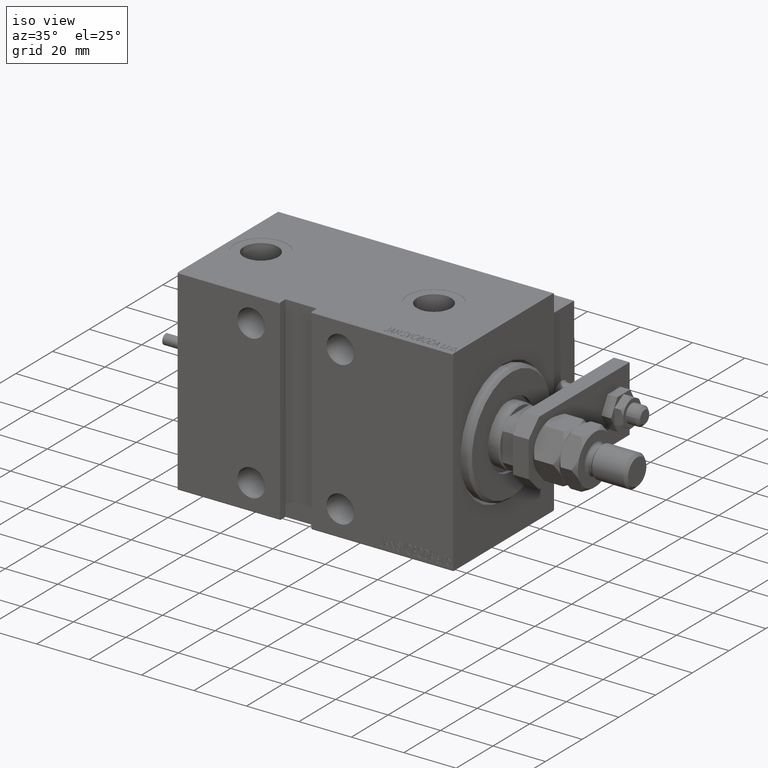
[diagram: clean part render]
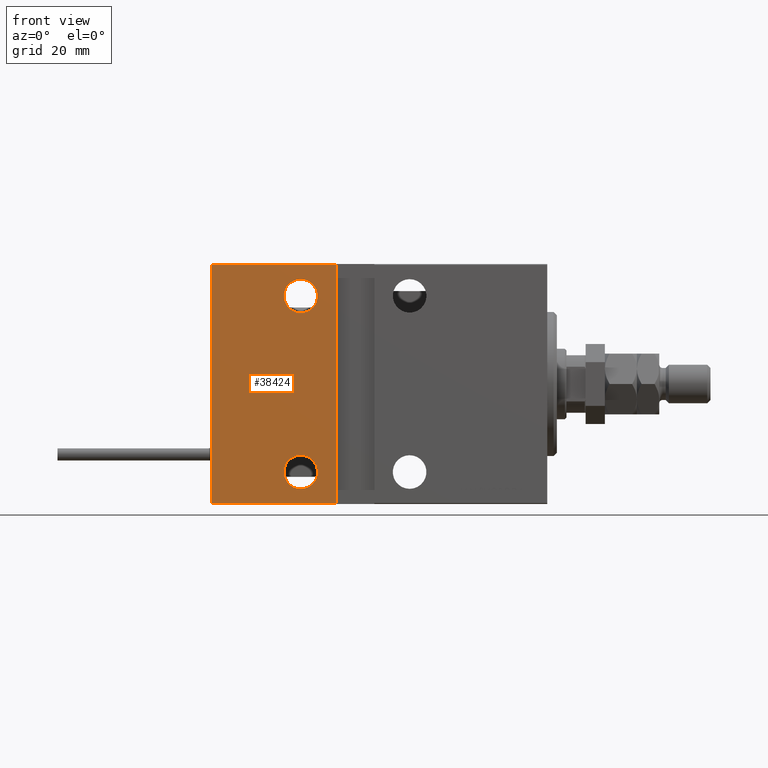
[diagram: tour spotlight — one face highlighted and labeled with its STEP entity id]
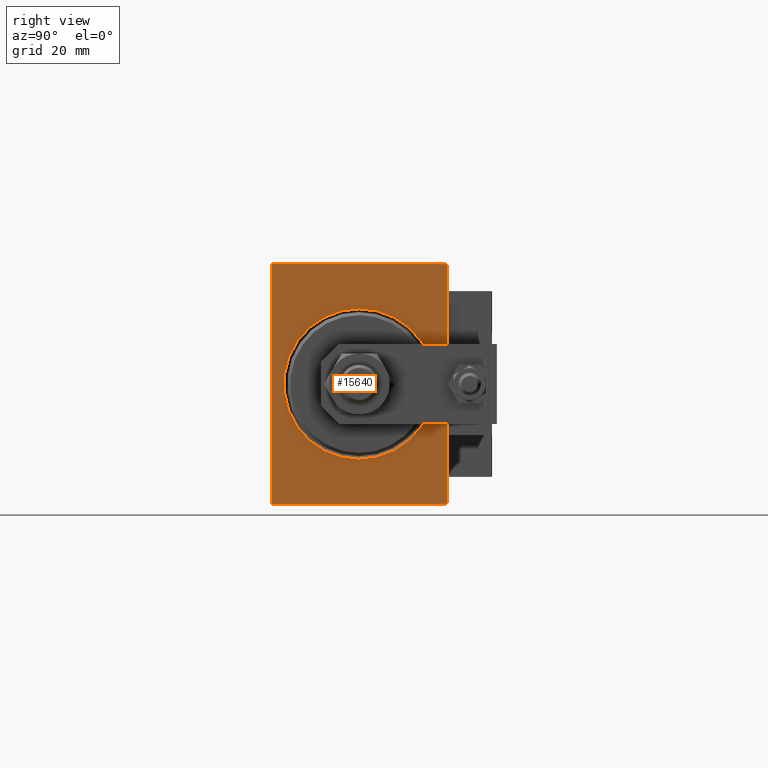
[diagram: tour spotlight — one face highlighted and labeled with its STEP entity id]
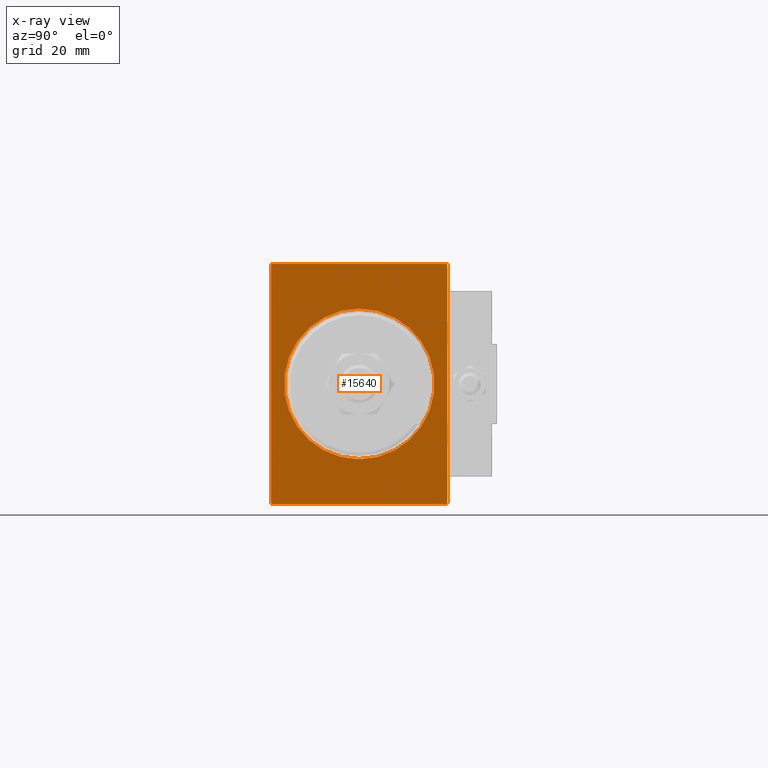
[diagram: x-ray of the same camera — body ghosted, this tour face saturated]
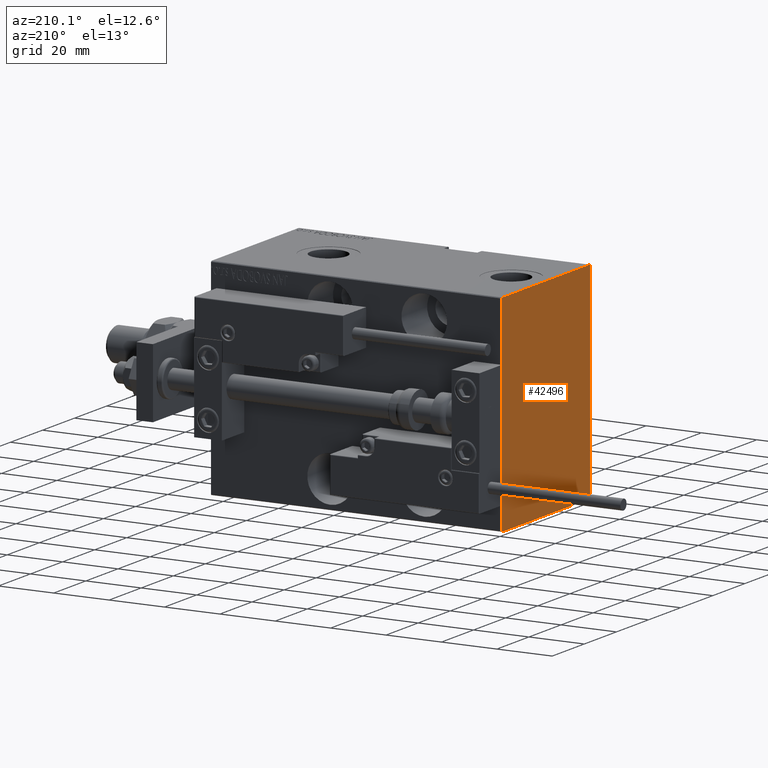
[diagram: tour spotlight — one face highlighted and labeled with its STEP entity id]
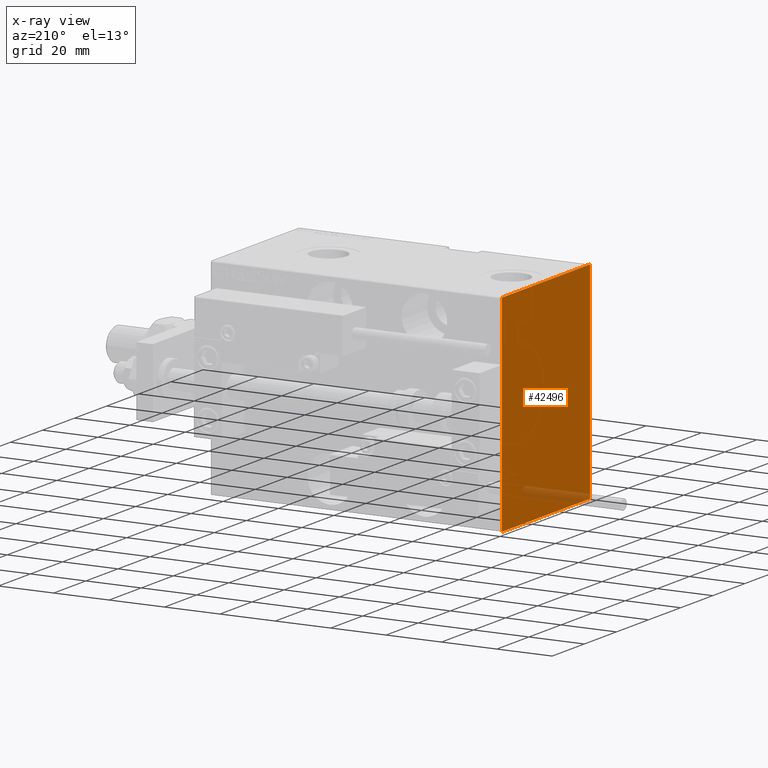
[diagram: x-ray of the same camera — body ghosted, this tour face saturated]
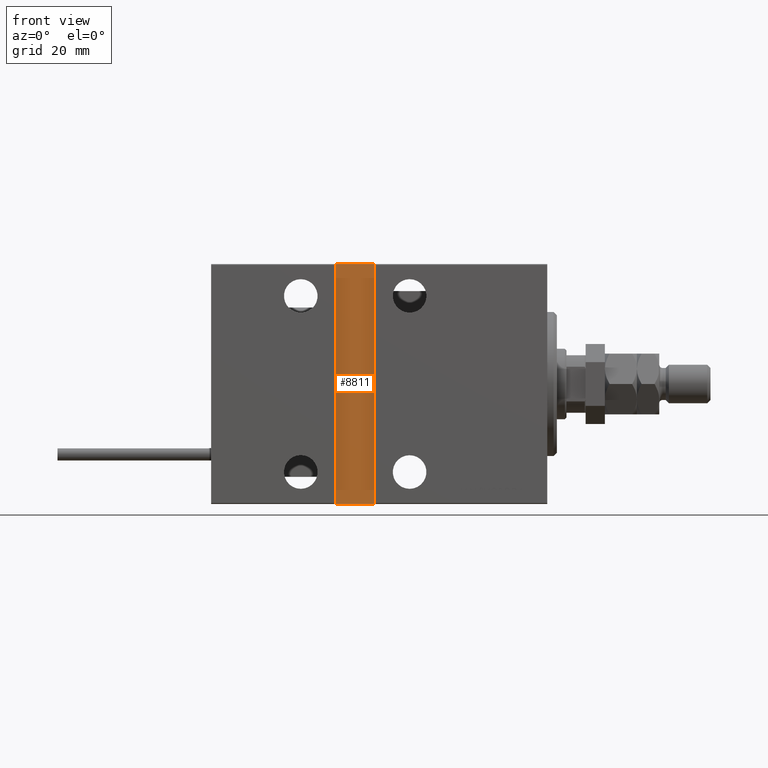
[diagram: tour spotlight — one face highlighted and labeled with its STEP entity id]
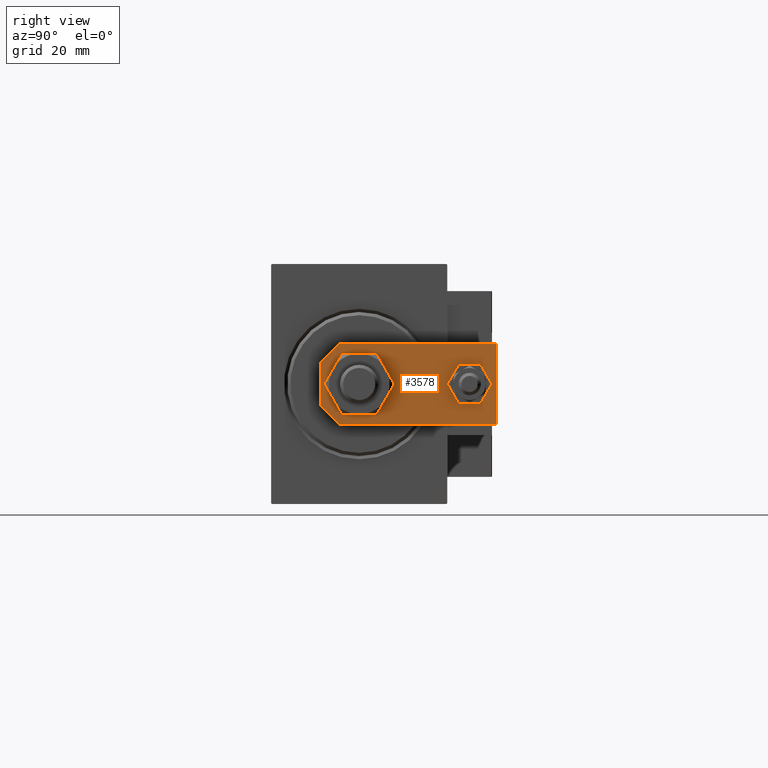
[diagram: tour spotlight — one face highlighted and labeled with its STEP entity id]
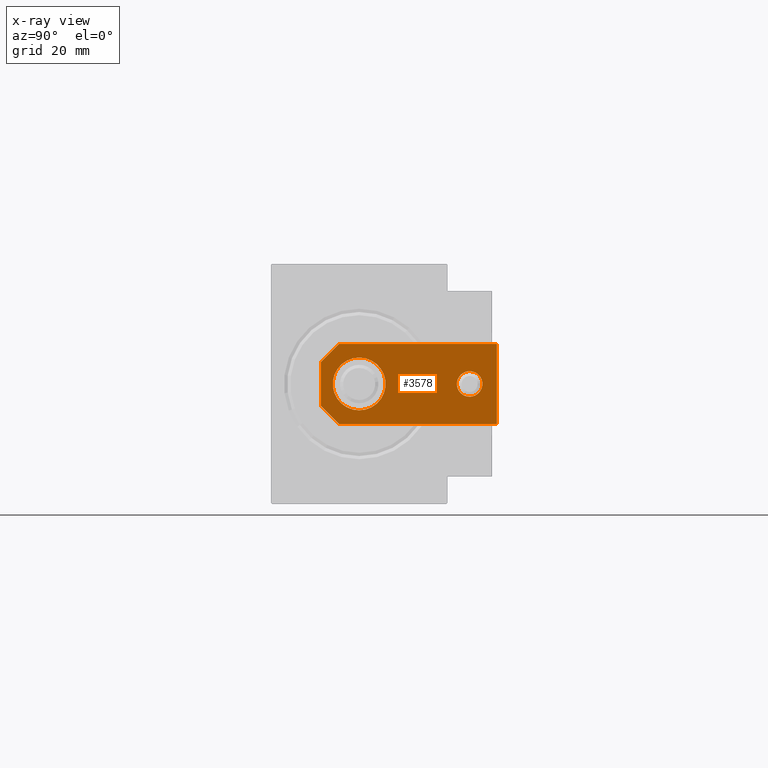
[diagram: x-ray of the same camera — body ghosted, this tour face saturated]
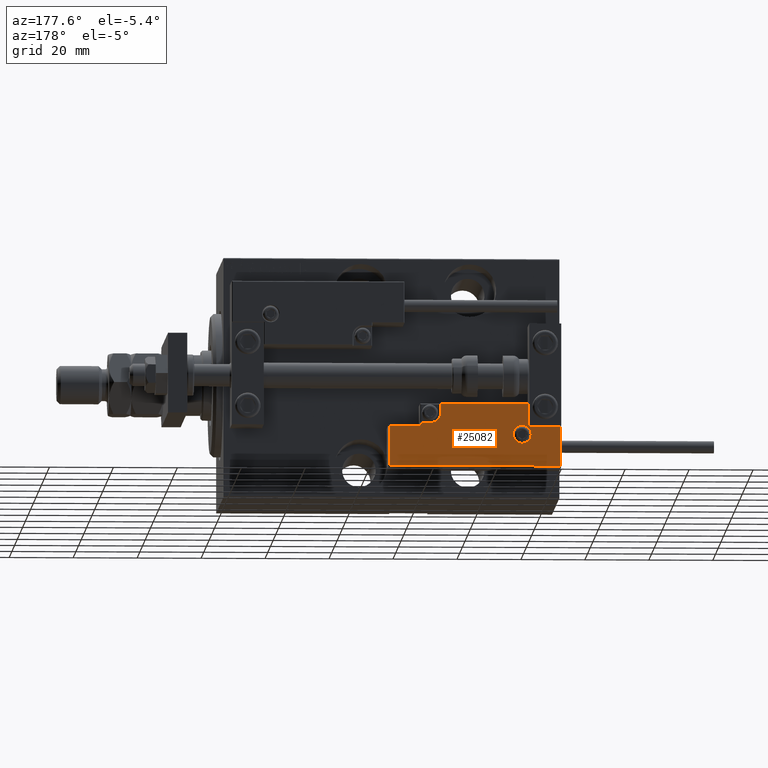
[diagram: tour spotlight — one face highlighted and labeled with its STEP entity id]
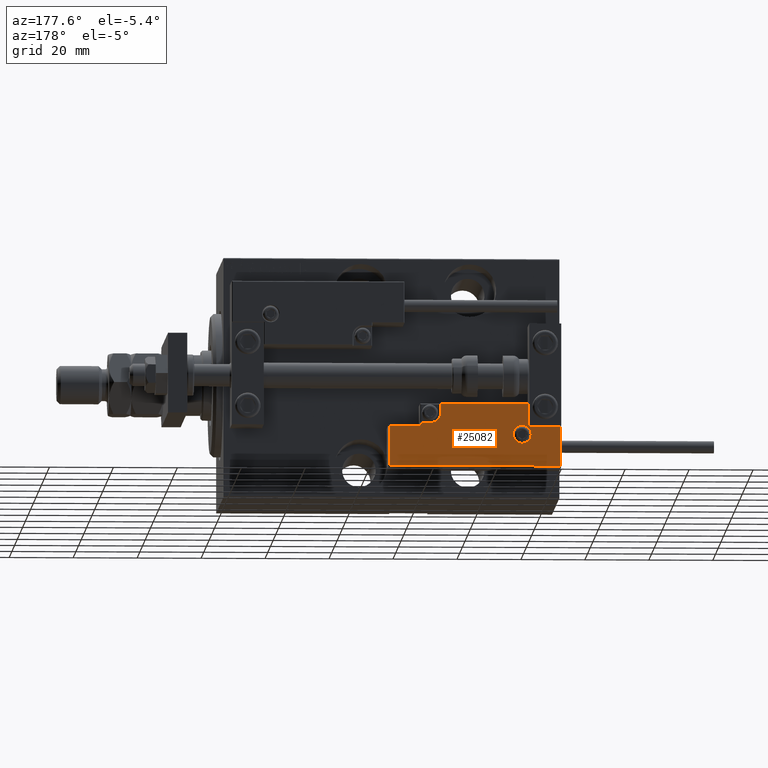
[diagram: tour spotlight — one face highlighted and labeled with its STEP entity id]
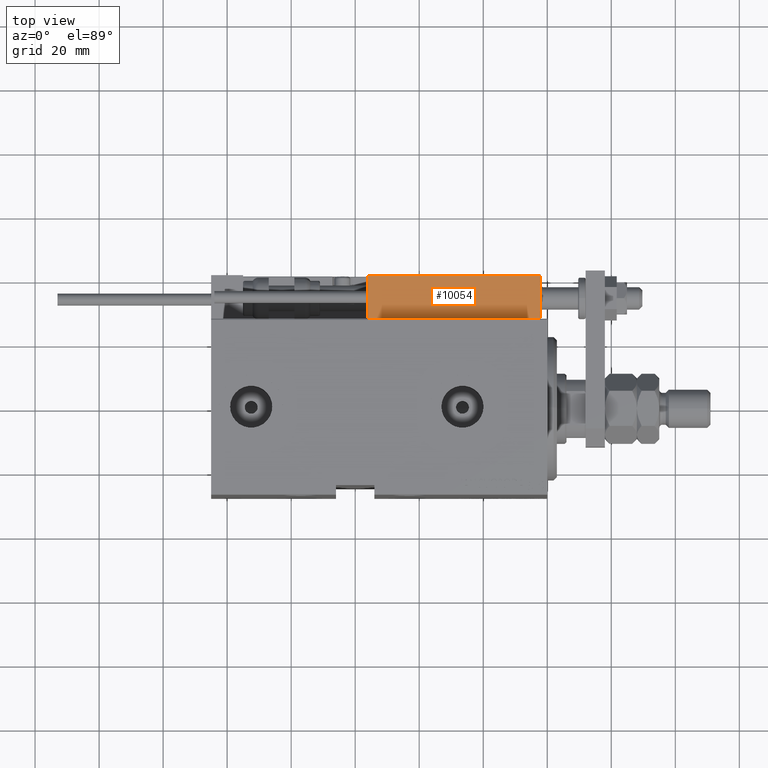
[diagram: tour spotlight — one face highlighted and labeled with its STEP entity id]
A machine part: a face-by-face anatomy tour. The part has 1339 B-rep faces; the first image is the clean iso view, then the 8 largest visible faces are spotlighted one at a time (largest first), each with its STEP entity span.

Face 1 — front view, entity #38424. In plain terms, the highlighted planar face has unit normal (-0, 1, -0).
Definition (entity closure, byte-faithful):
#114 = ORIENTED_EDGE ( 'NONE', *, *, #33046, .T. ) ;
#226 = DIRECTION ( 'NONE',  ( 0.000000000000000000, -1.000000000000000000, -9.251858538542970348E-17 ) ) ;
#1800 = DIRECTION ( 'NONE',  ( 0.000000000000000000, -1.000000000000000000, -9.251858538542970348E-17 ) ) ;
#3501 = EDGE_CURVE ( 'NONE', #46280, #40195, #50931, .T. ) ;
#3828 = CIRCLE ( 'NONE', #47236, 5.250000000000004441 ) ;
#4428 = DIRECTION ( 'NONE',  ( -0.000000000000000000, 9.251858538542970348E-17, -1.000000000000000000 ) ) ;
#5444 = VERTEX_POINT ( 'NONE', #12731 ) ;
#5595 = EDGE_CURVE ( 'NONE', #20827, #33365, #18261, .T. ) ;
#5861 = PLANE ( 'NONE',  #26286 ) ;
#7049 = VECTOR ( 'NONE', #35425, 1000.000000000000000 ) ;
#7728 = LINE ( 'NONE', #27320, #7049 ) ;
#9780 = CARTESIAN_POINT ( 'NONE',  ( 105.0000000000000000, 27.50000000000000355, -37.50000000000000711 ) ) ;
#10036 = VERTEX_POINT ( 'NONE', #18808 ) ;
#11020 = ORIENTED_EDGE ( 'NONE', *, *, #40705, .T. ) ;
#11197 = CIRCLE ( 'NONE', #17868, 5.250000000000000888 ) ;
#11647 = DIRECTION ( 'NONE',  ( 0.000000000000000000, -1.000000000000000000, -9.251858538542970348E-17 ) ) ;
#11732 = CARTESIAN_POINT ( 'NONE',  ( 77.00000000000001421, 27.49999999999999645, 27.50000000000002132 ) ) ;
#12009 = CARTESIAN_POINT ( 'NONE',  ( 66.00000000000000000, 27.50000000000000355, -37.50000000000001421 ) ) ;
#12731 = CARTESIAN_POINT ( 'NONE',  ( 105.0000000000000000, 27.50000000000000355, -37.20000000000002416 ) ) ;
#13321 = ORIENTED_EDGE ( 'NONE', *, *, #3501, .T. ) ;
#15296 = CARTESIAN_POINT ( 'NONE',  ( 77.00000000000001421, 27.50000000000000355, -27.49999999999998579 ) ) ;
#15635 = VECTOR ( 'NONE', #26086, 1000.000000000000000 ) ;
#15661 = VERTEX_POINT ( 'NONE', #18826 ) ;
#15818 = EDGE_LOOP ( 'NONE', ( #43598, #27121, #43278, #13321 ) ) ;
#16771 = EDGE_CURVE ( 'NONE', #5444, #15661, #26859, .T. ) ;
#17372 = FACE_BOUND ( 'NONE', #20435, .T. ) ;
#17868 = AXIS2_PLACEMENT_3D ( 'NONE', #42054, #1800, #50414 ) ;
#18261 = CIRCLE ( 'NONE', #44171, 5.250000000000000888 ) ;
#18808 = CARTESIAN_POINT ( 'NONE',  ( 77.00000000000001421, 27.49999999999999645, 32.75000000000002132 ) ) ;
#18826 = CARTESIAN_POINT ( 'NONE',  ( 66.00000000000000000, 27.50000000000000355, -37.20000000000002416 ) ) ;
#19196 = EDGE_CURVE ( 'NONE', #40909, #10036, #45812, .T. ) ;
#19738 = CARTESIAN_POINT ( 'NONE',  ( 77.00000000000001421, 27.49999999999999645, 22.25000000000001776 ) ) ;
#20435 = EDGE_LOOP ( 'NONE', ( #49066, #114 ) ) ;
#20827 = VERTEX_POINT ( 'NONE', #31968 ) ;
#21803 = DIRECTION ( 'NONE',  ( 0.000000000000000000, 9.251858538542970348E-17, -1.000000000000000000 ) ) ;
#22361 = VECTOR ( 'NONE', #47247, 1000.000000000000000 ) ;
#22380 = DIRECTION ( 'NONE',  ( 0.000000000000000000, -1.000000000000000000, -9.251858538542970348E-17 ) ) ;
#23171 = CARTESIAN_POINT ( 'NONE',  ( 66.00000000000000000, 27.49999999999999645, 37.20000000000005969 ) ) ;
#25972 = DIRECTION ( 'NONE',  ( 0.000000000000000000, -1.000000000000000000, -9.251858538542970348E-17 ) ) ;
#26086 = DIRECTION ( 'NONE',  ( -1.000000000000000000, 0.000000000000000000, 0.000000000000000000 ) ) ;
#26286 = AXIS2_PLACEMENT_3D ( 'NONE', #9780, #25972, #21803 ) ;
#26859 = LINE ( 'NONE', #31029, #15635 ) ;
#27121 = ORIENTED_EDGE ( 'NONE', *, *, #16771, .T. ) ;
#27320 = CARTESIAN_POINT ( 'NONE',  ( 105.0000000000000000, 27.50000000000000355, -37.50000000000000711 ) ) ;
#31029 = CARTESIAN_POINT ( 'NONE',  ( 105.0000000000000000, 27.50000000000000355, -37.20000000000002416 ) ) ;
#31968 = CARTESIAN_POINT ( 'NONE',  ( 77.00000000000001421, 27.50000000000000355, -22.24999999999998224 ) ) ;
#33037 = FACE_OUTER_BOUND ( 'NONE', #15818, .T. ) ;
#33046 = EDGE_CURVE ( 'NONE', #33365, #20827, #11197, .T. ) ;
#33365 = VERTEX_POINT ( 'NONE', #40649 ) ;
#34263 = EDGE_CURVE ( 'NONE', #5444, #40195, #7728, .T. ) ;
#34948 = AXIS2_PLACEMENT_3D ( 'NONE', #11732, #226, #43886 ) ;
#35170 = DIRECTION ( 'NONE',  ( 0.000000000000000000, 0.000000000000000000, -1.000000000000000000 ) ) ;
#35425 = DIRECTION ( 'NONE',  ( 0.000000000000000000, -9.251858538542970348E-17, 1.000000000000000000 ) ) ;
#36828 = LINE ( 'NONE', #12009, #39300 ) ;
#37203 = CARTESIAN_POINT ( 'NONE',  ( 105.0000000000000000, 27.49999999999999645, 37.20000000000005258 ) ) ;
#38424 = ADVANCED_FACE ( 'NONE', ( #17372, #41691, #33037 ), #5861, .F. ) ;
#39300 = VECTOR ( 'NONE', #4428, 1000.000000000000000 ) ;
#40195 = VERTEX_POINT ( 'NONE', #37203 ) ;
#40649 = CARTESIAN_POINT ( 'NONE',  ( 77.00000000000001421, 27.50000000000000355, -32.74999999999998579 ) ) ;
#40705 = EDGE_CURVE ( 'NONE', #10036, #40909, #3828, .T. ) ;
#40909 = VERTEX_POINT ( 'NONE', #19738 ) ;
#41691 = FACE_BOUND ( 'NONE', #45667, .T. ) ;
#42054 = CARTESIAN_POINT ( 'NONE',  ( 77.00000000000001421, 27.50000000000000355, -27.49999999999998579 ) ) ;
#42263 = CARTESIAN_POINT ( 'NONE',  ( 77.00000000000001421, 27.49999999999999645, 27.50000000000002132 ) ) ;
#42577 = CARTESIAN_POINT ( 'NONE',  ( 105.0000000000000000, 27.49999999999999645, 37.20000000000005258 ) ) ;
#43278 = ORIENTED_EDGE ( 'NONE', *, *, #51484, .F. ) ;
#43598 = ORIENTED_EDGE ( 'NONE', *, *, #34263, .F. ) ;
#43886 = DIRECTION ( 'NONE',  ( 0.000000000000000000, 0.000000000000000000, -1.000000000000000000 ) ) ;
#43908 = ORIENTED_EDGE ( 'NONE', *, *, #19196, .T. ) ;
#44171 = AXIS2_PLACEMENT_3D ( 'NONE', #15296, #11647, #46949 ) ;
#45667 = EDGE_LOOP ( 'NONE', ( #11020, #43908 ) ) ;
#45812 = CIRCLE ( 'NONE', #34948, 5.250000000000004441 ) ;
#46280 = VERTEX_POINT ( 'NONE', #23171 ) ;
#46949 = DIRECTION ( 'NONE',  ( 0.000000000000000000, 0.000000000000000000, -1.000000000000000000 ) ) ;
#47236 = AXIS2_PLACEMENT_3D ( 'NONE', #42263, #22380, #35170 ) ;
#47247 = DIRECTION ( 'NONE',  ( 1.000000000000000000, 0.000000000000000000, 0.000000000000000000 ) ) ;
#49066 = ORIENTED_EDGE ( 'NONE', *, *, #5595, .T. ) ;
#50414 = DIRECTION ( 'NONE',  ( 0.000000000000000000, 0.000000000000000000, -1.000000000000000000 ) ) ;
#50931 = LINE ( 'NONE', #42577, #22361 ) ;
#51484 = EDGE_CURVE ( 'NONE', #46280, #15661, #36828, .T. ) ;

Face 2 — right view, entity #15640. An x-ray twin of the same camera follows (body ghosted, this face saturated) — the face is partly hidden behind the body. In plain terms, the highlighted planar face has unit normal (-1, 0, 0).
Definition (entity closure, byte-faithful):
#101 = EDGE_CURVE ( 'NONE', #29673, #33234, #20263, .T. ) ;
#627 = LINE ( 'NONE', #8473, #5767 ) ;
#651 = VECTOR ( 'NONE', #46685, 1000.000000000000000 ) ;
#2220 = CARTESIAN_POINT ( 'NONE',  ( 0.000000000000000000, 27.50000000000000355, -37.20000000000002416 ) ) ;
#2292 = DIRECTION ( 'NONE',  ( 0.000000000000000000, 0.000000000000000000, -1.000000000000000000 ) ) ;
#2633 = FACE_OUTER_BOUND ( 'NONE', #8945, .T. ) ;
#2745 = EDGE_CURVE ( 'NONE', #3443, #33815, #34633, .T. ) ;
#3443 = VERTEX_POINT ( 'NONE', #25816 ) ;
#3556 = CARTESIAN_POINT ( 'NONE',  ( 0.000000000000000000, -27.20000000000002061, -37.50000000000000711 ) ) ;
#4787 = DIRECTION ( 'NONE',  ( 1.000000000000000000, 0.000000000000000000, 0.000000000000000000 ) ) ;
#5767 = VECTOR ( 'NONE', #28571, 1000.000000000000000 ) ;
#6061 = CIRCLE ( 'NONE', #45334, 23.50000000000000355 ) ;
#6708 = ORIENTED_EDGE ( 'NONE', *, *, #47867, .F. ) ;
#7023 = CARTESIAN_POINT ( 'NONE',  ( 0.000000000000000000, -27.20000000000000284, 37.49999999999999289 ) ) ;
#8473 = CARTESIAN_POINT ( 'NONE',  ( 0.000000000000000000, 27.50000000000000355, -37.50000000000000711 ) ) ;
#8945 = EDGE_LOOP ( 'NONE', ( #11652, #11400, #6708, #13602, #21090, #12863, #46383, #37395 ) ) ;
#9040 = CARTESIAN_POINT ( 'NONE',  ( 0.000000000000000000, 2.877919977996280715E-15, -23.50000000000000355 ) ) ;
#9388 = VERTEX_POINT ( 'NONE', #9040 ) ;
#9803 = LINE ( 'NONE', #2220, #49954 ) ;
#10324 = DIRECTION ( 'NONE',  ( 0.000000000000000000, -0.7071067811865434649, -0.7071067811865516806 ) ) ;
#11400 = ORIENTED_EDGE ( 'NONE', *, *, #18580, .T. ) ;
#11435 = AXIS2_PLACEMENT_3D ( 'NONE', #18576, #30562, #27165 ) ;
#11652 = ORIENTED_EDGE ( 'NONE', *, *, #2745, .F. ) ;
#12863 = ORIENTED_EDGE ( 'NONE', *, *, #101, .T. ) ;
#13379 = LINE ( 'NONE', #33757, #24058 ) ;
#13602 = ORIENTED_EDGE ( 'NONE', *, *, #49649, .T. ) ;
#15640 = ADVANCED_FACE ( 'NONE', ( #38438, #2633 ), #47054, .F. ) ;
#17296 = EDGE_CURVE ( 'NONE', #38335, #33815, #20507, .T. ) ;
#17457 = CARTESIAN_POINT ( 'NONE',  ( 0.000000000000000000, 27.49999999999999645, 37.20000000000005258 ) ) ;
#18507 = DIRECTION ( 'NONE',  ( 0.000000000000000000, 0.000000000000000000, -1.000000000000000000 ) ) ;
#18576 = CARTESIAN_POINT ( 'NONE',  ( 0.000000000000000000, 0.000000000000000000, 0.000000000000000000 ) ) ;
#18580 = EDGE_CURVE ( 'NONE', #3443, #28551, #13379, .T. ) ;
#19487 = DIRECTION ( 'NONE',  ( -0.000000000000000000, -0.7071067811865474617, 0.7071067811865474617 ) ) ;
#19991 = AXIS2_PLACEMENT_3D ( 'NONE', #29064, #4787, #44285 ) ;
#20026 = EDGE_CURVE ( 'NONE', #9388, #51585, #49204, .T. ) ;
#20263 = LINE ( 'NONE', #3556, #22364 ) ;
#20426 = EDGE_CURVE ( 'NONE', #29673, #29920, #38609, .T. ) ;
#20507 = LINE ( 'NONE', #36453, #38682 ) ;
#21090 = ORIENTED_EDGE ( 'NONE', *, *, #20426, .F. ) ;
#22159 = ORIENTED_EDGE ( 'NONE', *, *, #20026, .T. ) ;
#22364 = VECTOR ( 'NONE', #19487, 1000.000000000000114 ) ;
#24058 = VECTOR ( 'NONE', #33500, 1000.000000000000114 ) ;
#24144 = EDGE_CURVE ( 'NONE', #38335, #33234, #47239, .T. ) ;
#24152 = EDGE_CURVE ( 'NONE', #51585, #9388, #6061, .T. ) ;
#25816 = CARTESIAN_POINT ( 'NONE',  ( 0.000000000000000000, 27.20000000000003126, 37.50000000000000711 ) ) ;
#26949 = VECTOR ( 'NONE', #18507, 1000.000000000000000 ) ;
#27034 = CARTESIAN_POINT ( 'NONE',  ( 0.000000000000000000, 27.20000000000002771, -37.50000000000000711 ) ) ;
#27165 = DIRECTION ( 'NONE',  ( 0.000000000000000000, 0.000000000000000000, -1.000000000000000000 ) ) ;
#28551 = VERTEX_POINT ( 'NONE', #17457 ) ;
#28571 = DIRECTION ( 'NONE',  ( 0.000000000000000000, -9.251858538542970348E-17, 1.000000000000000000 ) ) ;
#29064 = CARTESIAN_POINT ( 'NONE',  ( 0.000000000000000000, 0.000000000000000000, 0.000000000000000000 ) ) ;
#29673 = VERTEX_POINT ( 'NONE', #36043 ) ;
#29920 = VERTEX_POINT ( 'NONE', #27034 ) ;
#29946 = VECTOR ( 'NONE', #34683, 1000.000000000000000 ) ;
#30562 = DIRECTION ( 'NONE',  ( 1.000000000000000000, 0.000000000000000000, 0.000000000000000000 ) ) ;
#32055 = ORIENTED_EDGE ( 'NONE', *, *, #24152, .T. ) ;
#32584 = VERTEX_POINT ( 'NONE', #43781 ) ;
#33234 = VERTEX_POINT ( 'NONE', #50099 ) ;
#33500 = DIRECTION ( 'NONE',  ( -0.000000000000000000, 0.7071067811865638930, -0.7071067811865312525 ) ) ;
#33757 = CARTESIAN_POINT ( 'NONE',  ( 0.000000000000000000, 27.20000000000003126, 37.50000000000000711 ) ) ;
#33815 = VERTEX_POINT ( 'NONE', #7023 ) ;
#34431 = CARTESIAN_POINT ( 'NONE',  ( 0.000000000000000000, 0.000000000000000000, 0.000000000000000000 ) ) ;
#34633 = LINE ( 'NONE', #50598, #651 ) ;
#34683 = DIRECTION ( 'NONE',  ( 0.000000000000000000, 1.000000000000000000, 0.000000000000000000 ) ) ;
#36043 = CARTESIAN_POINT ( 'NONE',  ( 0.000000000000000000, -27.20000000000002061, -37.50000000000000711 ) ) ;
#36205 = CARTESIAN_POINT ( 'NONE',  ( 0.000000000000000000, -27.50000000000000000, 37.19999999999999574 ) ) ;
#36453 = CARTESIAN_POINT ( 'NONE',  ( 0.000000000000000000, -27.50000000000000000, 37.19999999999999574 ) ) ;
#37395 = ORIENTED_EDGE ( 'NONE', *, *, #17296, .T. ) ;
#37864 = EDGE_LOOP ( 'NONE', ( #32055, #22159 ) ) ;
#38335 = VERTEX_POINT ( 'NONE', #36205 ) ;
#38438 = FACE_BOUND ( 'NONE', #37864, .T. ) ;
#38609 = LINE ( 'NONE', #46466, #29946 ) ;
#38682 = VECTOR ( 'NONE', #41614, 999.9999999999998863 ) ;
#41614 = DIRECTION ( 'NONE',  ( -0.000000000000000000, 0.7071067811865515695, 0.7071067811865435759 ) ) ;
#43781 = CARTESIAN_POINT ( 'NONE',  ( 0.000000000000000000, 27.50000000000000355, -37.20000000000002416 ) ) ;
#44285 = DIRECTION ( 'NONE',  ( 0.000000000000000000, 0.000000000000000000, -1.000000000000000000 ) ) ;
#45334 = AXIS2_PLACEMENT_3D ( 'NONE', #34431, #50392, #2292 ) ;
#46383 = ORIENTED_EDGE ( 'NONE', *, *, #24144, .F. ) ;
#46466 = CARTESIAN_POINT ( 'NONE',  ( 0.000000000000000000, -27.50000000000000000, -37.50000000000000711 ) ) ;
#46685 = DIRECTION ( 'NONE',  ( 0.000000000000000000, -1.000000000000000000, -2.523234146875355998E-16 ) ) ;
#47054 = PLANE ( 'NONE',  #11435 ) ;
#47239 = LINE ( 'NONE', #50922, #26949 ) ;
#47867 = EDGE_CURVE ( 'NONE', #32584, #28551, #627, .T. ) ;
#49204 = CIRCLE ( 'NONE', #19991, 23.50000000000000355 ) ;
#49649 = EDGE_CURVE ( 'NONE', #32584, #29920, #9803, .T. ) ;
#49883 = CARTESIAN_POINT ( 'NONE',  ( 0.000000000000000000, 0.000000000000000000, 23.50000000000000355 ) ) ;
#49954 = VECTOR ( 'NONE', #10324, 1000.000000000000000 ) ;
#50099 = CARTESIAN_POINT ( 'NONE',  ( 0.000000000000000000, -27.50000000000000000, -37.20000000000002416 ) ) ;
#50392 = DIRECTION ( 'NONE',  ( 1.000000000000000000, 0.000000000000000000, 0.000000000000000000 ) ) ;
#50598 = CARTESIAN_POINT ( 'NONE',  ( 0.000000000000000000, 27.49999999999999645, 37.50000000000000711 ) ) ;
#50922 = CARTESIAN_POINT ( 'NONE',  ( 0.000000000000000000, -27.50000000000000000, 37.49999999999999289 ) ) ;
#51585 = VERTEX_POINT ( 'NONE', #49883 ) ;

Face 3 — auxiliary view, entity #42496. An x-ray twin of the same camera follows (body ghosted, this face saturated) — the face is partly hidden behind the body. In plain terms, the highlighted planar face has unit normal (-1, 0, 0).
Definition (entity closure, byte-faithful):
#1093 = LINE ( 'NONE', #32711, #47587 ) ;
#3044 = ORIENTED_EDGE ( 'NONE', *, *, #28946, .T. ) ;
#3754 = LINE ( 'NONE', #48193, #38587 ) ;
#4269 = CARTESIAN_POINT ( 'NONE',  ( 105.0000000000000000, 27.20000000000002771, -37.50000000000000711 ) ) ;
#5359 = EDGE_CURVE ( 'NONE', #27373, #28356, #36005, .T. ) ;
#5444 = VERTEX_POINT ( 'NONE', #12731 ) ;
#5512 = DIRECTION ( 'NONE',  ( -0.000000000000000000, 0.7071067811865474617, -0.7071067811865474617 ) ) ;
#6717 = PLANE ( 'NONE',  #29727 ) ;
#7049 = VECTOR ( 'NONE', #35425, 1000.000000000000000 ) ;
#7296 = CARTESIAN_POINT ( 'NONE',  ( 105.0000000000000000, -27.50000000000000000, 37.49999999999999289 ) ) ;
#7728 = LINE ( 'NONE', #27320, #7049 ) ;
#8754 = EDGE_CURVE ( 'NONE', #45418, #5444, #1093, .T. ) ;
#8786 = EDGE_CURVE ( 'NONE', #11010, #47778, #25370, .T. ) ;
#9891 = VECTOR ( 'NONE', #12217, 999.9999999999998863 ) ;
#10332 = VECTOR ( 'NONE', #39183, 1000.000000000000000 ) ;
#11010 = VERTEX_POINT ( 'NONE', #29202 ) ;
#12117 = DIRECTION ( 'NONE',  ( 0.000000000000000000, 1.000000000000000000, 0.000000000000000000 ) ) ;
#12217 = DIRECTION ( 'NONE',  ( 0.000000000000000000, -0.7071067811865515695, -0.7071067811865435759 ) ) ;
#12483 = CARTESIAN_POINT ( 'NONE',  ( 105.0000000000000000, -32.34999999999983800, 32.35000000000021458 ) ) ;
#12731 = CARTESIAN_POINT ( 'NONE',  ( 105.0000000000000000, 27.50000000000000355, -37.20000000000002416 ) ) ;
#13897 = CARTESIAN_POINT ( 'NONE',  ( 105.0000000000000000, -27.50000000000000000, 37.19999999999999574 ) ) ;
#14635 = LINE ( 'NONE', #50731, #24789 ) ;
#15581 = EDGE_CURVE ( 'NONE', #21272, #27373, #14635, .T. ) ;
#15972 = CARTESIAN_POINT ( 'NONE',  ( 105.0000000000000000, 32.34999999999938325, 32.35000000000088249 ) ) ;
#16777 = DIRECTION ( 'NONE',  ( -0.000000000000000000, 0.7071067811865434649, 0.7071067811865516806 ) ) ;
#18741 = CARTESIAN_POINT ( 'NONE',  ( 105.0000000000000000, 0.000000000000000000, 0.000000000000000000 ) ) ;
#19057 = LINE ( 'NONE', #7296, #10332 ) ;
#20446 = EDGE_LOOP ( 'NONE', ( #3044, #23971, #51659, #43365, #32639, #41949, #39483, #22222 ) ) ;
#21272 = VERTEX_POINT ( 'NONE', #21874 ) ;
#21874 = CARTESIAN_POINT ( 'NONE',  ( 105.0000000000000000, 27.20000000000003126, 37.50000000000000711 ) ) ;
#22217 = EDGE_CURVE ( 'NONE', #40195, #21272, #28745, .T. ) ;
#22222 = ORIENTED_EDGE ( 'NONE', *, *, #8786, .T. ) ;
#23971 = ORIENTED_EDGE ( 'NONE', *, *, #8754, .T. ) ;
#24789 = VECTOR ( 'NONE', #35032, 1000.000000000000000 ) ;
#25370 = LINE ( 'NONE', #41337, #37573 ) ;
#25590 = CARTESIAN_POINT ( 'NONE',  ( 105.0000000000000000, -27.20000000000000284, 37.49999999999999289 ) ) ;
#27028 = CARTESIAN_POINT ( 'NONE',  ( 105.0000000000000000, -27.20000000000002061, -37.50000000000000711 ) ) ;
#27320 = CARTESIAN_POINT ( 'NONE',  ( 105.0000000000000000, 27.50000000000000355, -37.50000000000000711 ) ) ;
#27373 = VERTEX_POINT ( 'NONE', #25590 ) ;
#27535 = VECTOR ( 'NONE', #31899, 1000.000000000000114 ) ;
#28356 = VERTEX_POINT ( 'NONE', #13897 ) ;
#28745 = LINE ( 'NONE', #15972, #27535 ) ;
#28946 = EDGE_CURVE ( 'NONE', #47778, #45418, #3754, .T. ) ;
#29202 = CARTESIAN_POINT ( 'NONE',  ( 105.0000000000000000, -27.50000000000000000, -37.20000000000002416 ) ) ;
#29727 = AXIS2_PLACEMENT_3D ( 'NONE', #18741, #38601, #43068 ) ;
#31899 = DIRECTION ( 'NONE',  ( -0.000000000000000000, -0.7071067811865638930, 0.7071067811865312525 ) ) ;
#32639 = ORIENTED_EDGE ( 'NONE', *, *, #15581, .T. ) ;
#32711 = CARTESIAN_POINT ( 'NONE',  ( 105.0000000000000000, 32.35000000000017906, -32.34999999999980247 ) ) ;
#34263 = EDGE_CURVE ( 'NONE', #5444, #40195, #7728, .T. ) ;
#35032 = DIRECTION ( 'NONE',  ( 0.000000000000000000, -1.000000000000000000, -2.523234146875355998E-16 ) ) ;
#35251 = EDGE_CURVE ( 'NONE', #28356, #11010, #19057, .T. ) ;
#35425 = DIRECTION ( 'NONE',  ( 0.000000000000000000, -9.251858538542970348E-17, 1.000000000000000000 ) ) ;
#36005 = LINE ( 'NONE', #12483, #9891 ) ;
#37203 = CARTESIAN_POINT ( 'NONE',  ( 105.0000000000000000, 27.49999999999999645, 37.20000000000005258 ) ) ;
#37573 = VECTOR ( 'NONE', #5512, 1000.000000000000114 ) ;
#38587 = VECTOR ( 'NONE', #12117, 1000.000000000000000 ) ;
#38601 = DIRECTION ( 'NONE',  ( 1.000000000000000000, 0.000000000000000000, 0.000000000000000000 ) ) ;
#39183 = DIRECTION ( 'NONE',  ( 0.000000000000000000, 0.000000000000000000, -1.000000000000000000 ) ) ;
#39483 = ORIENTED_EDGE ( 'NONE', *, *, #35251, .T. ) ;
#40195 = VERTEX_POINT ( 'NONE', #37203 ) ;
#41337 = CARTESIAN_POINT ( 'NONE',  ( 105.0000000000000000, -32.35000000000000853, -32.35000000000000853 ) ) ;
#41949 = ORIENTED_EDGE ( 'NONE', *, *, #5359, .T. ) ;
#42496 = ADVANCED_FACE ( 'NONE', ( #42554 ), #6717, .T. ) ;
#42554 = FACE_OUTER_BOUND ( 'NONE', #20446, .T. ) ;
#43068 = DIRECTION ( 'NONE',  ( 0.000000000000000000, 0.000000000000000000, -1.000000000000000000 ) ) ;
#43365 = ORIENTED_EDGE ( 'NONE', *, *, #22217, .T. ) ;
#45418 = VERTEX_POINT ( 'NONE', #4269 ) ;
#47587 = VECTOR ( 'NONE', #16777, 1000.000000000000000 ) ;
#47778 = VERTEX_POINT ( 'NONE', #27028 ) ;
#48193 = CARTESIAN_POINT ( 'NONE',  ( 105.0000000000000000, -27.50000000000000000, -37.50000000000000711 ) ) ;
#50731 = CARTESIAN_POINT ( 'NONE',  ( 105.0000000000000000, 27.49999999999999645, 37.50000000000000711 ) ) ;
#51659 = ORIENTED_EDGE ( 'NONE', *, *, #34263, .T. ) ;

Face 4 — front view, entity #8811. In plain terms, the highlighted planar face has unit normal (-0, 1, -0).
Definition (entity closure, byte-faithful):
#2443 = VERTEX_POINT ( 'NONE', #23256 ) ;
#4190 = LINE ( 'NONE', #36325, #22131 ) ;
#5949 = LINE ( 'NONE', #37830, #37483 ) ;
#6636 = ORIENTED_EDGE ( 'NONE', *, *, #32770, .T. ) ;
#7524 = VERTEX_POINT ( 'NONE', #40115 ) ;
#8396 = LINE ( 'NONE', #31896, #8697 ) ;
#8697 = VECTOR ( 'NONE', #36614, 1000.000000000000000 ) ;
#8723 = CARTESIAN_POINT ( 'NONE',  ( 54.00000000000000000, 24.50000000000000355, -37.50000000000001421 ) ) ;
#8811 = ADVANCED_FACE ( 'NONE', ( #46294 ), #21723, .F. ) ;
#11845 = EDGE_CURVE ( 'NONE', #24743, #2443, #45966, .T. ) ;
#12410 = EDGE_CURVE ( 'NONE', #7524, #24743, #4190, .T. ) ;
#14053 = DIRECTION ( 'NONE',  ( 0.000000000000000000, -9.251858538542970348E-17, 1.000000000000000000 ) ) ;
#14131 = DIRECTION ( 'NONE',  ( 0.000000000000000000, -1.000000000000000000, -9.251858538542970348E-17 ) ) ;
#18044 = ORIENTED_EDGE ( 'NONE', *, *, #11845, .T. ) ;
#18515 = CARTESIAN_POINT ( 'NONE',  ( 54.00000000000000000, 24.50000000000000355, -37.50000000000001421 ) ) ;
#21723 = PLANE ( 'NONE',  #25075 ) ;
#22131 = VECTOR ( 'NONE', #40006, 1000.000000000000000 ) ;
#22239 = CARTESIAN_POINT ( 'NONE',  ( 0.000000000000000000, 24.50000000000000000, 2.165775976068013335E-15 ) ) ;
#22254 = ORIENTED_EDGE ( 'NONE', *, *, #47526, .T. ) ;
#22993 = VERTEX_POINT ( 'NONE', #39508 ) ;
#23256 = CARTESIAN_POINT ( 'NONE',  ( 54.00000000000000000, 24.49999999999999645, 37.50000000000000711 ) ) ;
#24743 = VERTEX_POINT ( 'NONE', #8723 ) ;
#25075 = AXIS2_PLACEMENT_3D ( 'NONE', #22239, #14131, #30056 ) ;
#27952 = ORIENTED_EDGE ( 'NONE', *, *, #12410, .T. ) ;
#29092 = EDGE_LOOP ( 'NONE', ( #18044, #22254, #6636, #27952 ) ) ;
#30056 = DIRECTION ( 'NONE',  ( 0.000000000000000000, 9.251858538542970348E-17, -1.000000000000000000 ) ) ;
#31896 = CARTESIAN_POINT ( 'NONE',  ( 66.00000000000000000, 24.50000000000000355, -37.50000000000001421 ) ) ;
#32770 = EDGE_CURVE ( 'NONE', #22993, #7524, #8396, .T. ) ;
#34428 = DIRECTION ( 'NONE',  ( 1.000000000000000000, -0.000000000000000000, -0.000000000000000000 ) ) ;
#36325 = CARTESIAN_POINT ( 'NONE',  ( 66.00000000000000000, 24.50000000000000355, -37.50000000000001421 ) ) ;
#36614 = DIRECTION ( 'NONE',  ( -0.000000000000000000, 9.251858538542970348E-17, -1.000000000000000000 ) ) ;
#37483 = VECTOR ( 'NONE', #34428, 1000.000000000000000 ) ;
#37830 = CARTESIAN_POINT ( 'NONE',  ( 66.00000000000000000, 24.49999999999999645, 37.50000000000000711 ) ) ;
#39508 = CARTESIAN_POINT ( 'NONE',  ( 66.00000000000000000, 24.49999999999999645, 37.50000000000000711 ) ) ;
#40006 = DIRECTION ( 'NONE',  ( -1.000000000000000000, 0.000000000000000000, 0.000000000000000000 ) ) ;
#40115 = CARTESIAN_POINT ( 'NONE',  ( 66.00000000000000000, 24.50000000000000355, -37.50000000000000711 ) ) ;
#45966 = LINE ( 'NONE', #18515, #49638 ) ;
#46294 = FACE_OUTER_BOUND ( 'NONE', #29092, .T. ) ;
#47526 = EDGE_CURVE ( 'NONE', #2443, #22993, #5949, .T. ) ;
#49638 = VECTOR ( 'NONE', #14053, 1000.000000000000000 ) ;

Face 5 — right view, entity #3578. An x-ray twin of the same camera follows (body ghosted, this face saturated) — the face is partly hidden behind the body. In plain terms, the highlighted planar face has unit normal (1, 0, -0).
Definition (entity closure, byte-faithful):
#826 = DIRECTION ( 'NONE',  ( 1.000000000000000000, 0.000000000000000000, 0.000000000000000000 ) ) ;
#2446 = LINE ( 'NONE', #34057, #12327 ) ;
#2517 = AXIS2_PLACEMENT_3D ( 'NONE', #42448, #5833, #37717 ) ;
#2589 = ORIENTED_EDGE ( 'NONE', *, *, #15989, .T. ) ;
#3119 = LINE ( 'NONE', #38657, #3643 ) ;
#3383 = ORIENTED_EDGE ( 'NONE', *, *, #13681, .T. ) ;
#3578 = ADVANCED_FACE ( 'NONE', ( #46220, #10398, #26594 ), #48283, .T. ) ;
#3591 = ORIENTED_EDGE ( 'NONE', *, *, #12747, .F. ) ;
#3643 = VECTOR ( 'NONE', #43124, 1000.000000000000000 ) ;
#3777 = AXIS2_PLACEMENT_3D ( 'NONE', #45861, #42470, #22581 ) ;
#4560 = VERTEX_POINT ( 'NONE', #5383 ) ;
#4985 = CARTESIAN_POINT ( 'NONE',  ( -9.629649721936179265E-32, 11.99999999999999645, 6.000000000000000000 ) ) ;
#5086 = VECTOR ( 'NONE', #43528, 1000.000000000000000 ) ;
#5383 = CARTESIAN_POINT ( 'NONE',  ( -12.50000000000000355, 5.660000000000005471, 6.000000000000000000 ) ) ;
#5833 = DIRECTION ( 'NONE',  ( 0.000000000000000000, 0.000000000000000000, 1.000000000000000000 ) ) ;
#6097 = EDGE_LOOP ( 'NONE', ( #14135, #12800 ) ) ;
#6773 = CARTESIAN_POINT ( 'NONE',  ( -9.629649721936179265E-32, 11.99999999999999645, 6.000000000000000000 ) ) ;
#7461 = VECTOR ( 'NONE', #37253, 1000.000000000000000 ) ;
#7759 = EDGE_CURVE ( 'NONE', #38415, #18641, #12508, .T. ) ;
#7963 = CIRCLE ( 'NONE', #3777, 4.000000000000000888 ) ;
#8364 = VERTEX_POINT ( 'NONE', #11885 ) ;
#8725 = CARTESIAN_POINT ( 'NONE',  ( -12.49999999999999822, 55.00000000000000000, 6.000000000000000000 ) ) ;
#10398 = FACE_OUTER_BOUND ( 'NONE', #48881, .T. ) ;
#10941 = VERTEX_POINT ( 'NONE', #36558 ) ;
#11885 = CARTESIAN_POINT ( 'NONE',  ( 12.50000000000000000, 55.00000000000000000, 6.000000000000000000 ) ) ;
#12226 = CARTESIAN_POINT ( 'NONE',  ( -3.420000000000013696, -3.420000000000006146, 6.000000000000000000 ) ) ;
#12327 = VECTOR ( 'NONE', #41923, 1000.000000000000114 ) ;
#12468 = DIRECTION ( 'NONE',  ( -0.000000000000000000, 0.000000000000000000, 1.000000000000000000 ) ) ;
#12508 = CIRCLE ( 'NONE', #2517, 4.000000000000000888 ) ;
#12747 = EDGE_CURVE ( 'NONE', #18641, #38415, #7963, .T. ) ;
#12800 = ORIENTED_EDGE ( 'NONE', *, *, #47134, .F. ) ;
#13681 = EDGE_CURVE ( 'NONE', #30040, #4560, #17176, .T. ) ;
#14135 = ORIENTED_EDGE ( 'NONE', *, *, #41379, .F. ) ;
#14281 = CARTESIAN_POINT ( 'NONE',  ( -12.49999999999999822, 55.00000000000000000, 6.000000000000000000 ) ) ;
#14663 = VERTEX_POINT ( 'NONE', #20795 ) ;
#15989 = EDGE_CURVE ( 'NONE', #16081, #18536, #2446, .T. ) ;
#16081 = VERTEX_POINT ( 'NONE', #37197 ) ;
#16792 = EDGE_LOOP ( 'NONE', ( #3591, #19743 ) ) ;
#17176 = LINE ( 'NONE', #14281, #44727 ) ;
#18536 = VERTEX_POINT ( 'NONE', #23677 ) ;
#18641 = VERTEX_POINT ( 'NONE', #21219 ) ;
#19156 = ORIENTED_EDGE ( 'NONE', *, *, #23866, .T. ) ;
#19743 = ORIENTED_EDGE ( 'NONE', *, *, #7759, .F. ) ;
#20411 = CARTESIAN_POINT ( 'NONE',  ( -6.840000000000012292, 4.814824860968089633E-32, 6.000000000000000000 ) ) ;
#20616 = EDGE_CURVE ( 'NONE', #8364, #30040, #25226, .T. ) ;
#20795 = CARTESIAN_POINT ( 'NONE',  ( -8.250000000000000000, 11.99999999999999645, 6.000000000000000000 ) ) ;
#21219 = CARTESIAN_POINT ( 'NONE',  ( -4.000000000000000888, 46.50000000000000000, 6.000000000000000000 ) ) ;
#22581 = DIRECTION ( 'NONE',  ( 1.000000000000000000, 0.000000000000000000, 0.000000000000000000 ) ) ;
#22936 = VECTOR ( 'NONE', #28159, 1000.000000000000000 ) ;
#23018 = ORIENTED_EDGE ( 'NONE', *, *, #35236, .T. ) ;
#23677 = CARTESIAN_POINT ( 'NONE',  ( 12.50000000000000355, 5.659999999999991260, 6.000000000000000000 ) ) ;
#23866 = EDGE_CURVE ( 'NONE', #47062, #16081, #39580, .T. ) ;
#25226 = LINE ( 'NONE', #33581, #7461 ) ;
#26104 = DIRECTION ( 'NONE',  ( 1.000000000000000000, 0.000000000000000000, 0.000000000000000000 ) ) ;
#26594 = FACE_BOUND ( 'NONE', #6097, .T. ) ;
#26623 = DIRECTION ( 'NONE',  ( 0.000000000000000000, 0.000000000000000000, 1.000000000000000000 ) ) ;
#27209 = AXIS2_PLACEMENT_3D ( 'NONE', #6773, #26623, #26104 ) ;
#27346 = AXIS2_PLACEMENT_3D ( 'NONE', #44621, #12468, #48544 ) ;
#27800 = CARTESIAN_POINT ( 'NONE',  ( -12.50000000000000355, 4.814824860968089633E-32, 6.000000000000000000 ) ) ;
#28159 = DIRECTION ( 'NONE',  ( 0.7071067811865467956, -0.7071067811865483499, 0.000000000000000000 ) ) ;
#29105 = CIRCLE ( 'NONE', #38315, 8.250000000000000000 ) ;
#29423 = DIRECTION ( 'NONE',  ( -9.462128050782584375E-17, -1.000000000000000000, 0.000000000000000000 ) ) ;
#30040 = VERTEX_POINT ( 'NONE', #8725 ) ;
#32080 = ORIENTED_EDGE ( 'NONE', *, *, #37998, .T. ) ;
#33581 = CARTESIAN_POINT ( 'NONE',  ( 12.50000000000000000, 55.00000000000000000, 6.000000000000000000 ) ) ;
#34057 = CARTESIAN_POINT ( 'NONE',  ( 3.419999999999990603, -3.419999999999999485, 6.000000000000000000 ) ) ;
#35236 = EDGE_CURVE ( 'NONE', #18536, #8364, #3119, .T. ) ;
#36558 = CARTESIAN_POINT ( 'NONE',  ( 8.250000000000000000, 11.99999999999999822, 6.000000000000000000 ) ) ;
#37197 = CARTESIAN_POINT ( 'NONE',  ( 6.839999999999998970, 4.814824860968089633E-32, 6.000000000000000000 ) ) ;
#37253 = DIRECTION ( 'NONE',  ( -1.000000000000000000, 0.000000000000000000, 0.000000000000000000 ) ) ;
#37717 = DIRECTION ( 'NONE',  ( 1.000000000000000000, 0.000000000000000000, 0.000000000000000000 ) ) ;
#37998 = EDGE_CURVE ( 'NONE', #4560, #47062, #48037, .T. ) ;
#38315 = AXIS2_PLACEMENT_3D ( 'NONE', #4985, #40549, #826 ) ;
#38415 = VERTEX_POINT ( 'NONE', #49009 ) ;
#38657 = CARTESIAN_POINT ( 'NONE',  ( 12.50000000000000355, 4.814824860968089633E-32, 6.000000000000000000 ) ) ;
#39580 = LINE ( 'NONE', #27800, #5086 ) ;
#40549 = DIRECTION ( 'NONE',  ( 0.000000000000000000, 0.000000000000000000, 1.000000000000000000 ) ) ;
#41379 = EDGE_CURVE ( 'NONE', #14663, #10941, #41456, .T. ) ;
#41456 = CIRCLE ( 'NONE', #27209, 8.250000000000000000 ) ;
#41923 = DIRECTION ( 'NONE',  ( 0.7071067811865483499, 0.7071067811865465735, -0.000000000000000000 ) ) ;
#42448 = CARTESIAN_POINT ( 'NONE',  ( -1.432611055310774642E-16, 46.50000000000000000, 6.000000000000000000 ) ) ;
#42470 = DIRECTION ( 'NONE',  ( 0.000000000000000000, 0.000000000000000000, 1.000000000000000000 ) ) ;
#43124 = DIRECTION ( 'NONE',  ( -6.308085367188389994E-17, 1.000000000000000000, 0.000000000000000000 ) ) ;
#43528 = DIRECTION ( 'NONE',  ( 1.000000000000000000, 0.000000000000000000, 0.000000000000000000 ) ) ;
#44621 = CARTESIAN_POINT ( 'NONE',  ( 0.000000000000000000, 0.000000000000000000, 6.000000000000000000 ) ) ;
#44727 = VECTOR ( 'NONE', #29423, 1000.000000000000000 ) ;
#45861 = CARTESIAN_POINT ( 'NONE',  ( -1.432611055310774642E-16, 46.50000000000000000, 6.000000000000000000 ) ) ;
#46220 = FACE_BOUND ( 'NONE', #16792, .T. ) ;
#47062 = VERTEX_POINT ( 'NONE', #20411 ) ;
#47134 = EDGE_CURVE ( 'NONE', #10941, #14663, #29105, .T. ) ;
#48037 = LINE ( 'NONE', #12226, #22936 ) ;
#48283 = PLANE ( 'NONE',  #27346 ) ;
#48544 = DIRECTION ( 'NONE',  ( 1.000000000000000000, 0.000000000000000000, 0.000000000000000000 ) ) ;
#48881 = EDGE_LOOP ( 'NONE', ( #3383, #32080, #19156, #2589, #23018, #51388 ) ) ;
#49009 = CARTESIAN_POINT ( 'NONE',  ( 4.000000000000000888, 46.50000000000000000, 6.000000000000000000 ) ) ;
#51388 = ORIENTED_EDGE ( 'NONE', *, *, #20616, .T. ) ;

Face 6 — auxiliary view, entity #25082. In plain terms, the highlighted planar face has unit normal (0, 1, -0).
Definition (entity closure, byte-faithful):
#12 = LINE ( 'NONE', #531, #13628 ) ;
#383 = ORIENTED_EDGE ( 'NONE', *, *, #14506, .T. ) ;
#531 = CARTESIAN_POINT ( 'NONE',  ( 17.00000000000000000, 6.300000000000003375, 14.00000000000000000 ) ) ;
#1375 = CARTESIAN_POINT ( 'NONE',  ( 16.69999999999999929, 7.300000000000009592, 14.00000000000000000 ) ) ;
#1499 = LINE ( 'NONE', #10119, #16007 ) ;
#2377 = AXIS2_PLACEMENT_3D ( 'NONE', #12118, #20743, #4030 ) ;
#2459 = ORIENTED_EDGE ( 'NONE', *, *, #37350, .T. ) ;
#3252 = ORIENTED_EDGE ( 'NONE', *, *, #27585, .T. ) ;
#4030 = DIRECTION ( 'NONE',  ( 1.000000000000000000, 0.000000000000000000, 0.000000000000000000 ) ) ;
#4705 = DIRECTION ( 'NONE',  ( 1.000000000000000000, 5.782411586589357639E-16, -0.000000000000000000 ) ) ;
#4737 = CARTESIAN_POINT ( 'NONE',  ( -11.99999999999994849, 9.800000000000004263, 14.00000000000000000 ) ) ;
#5122 = CARTESIAN_POINT ( 'NONE',  ( 10.69999999999999929, 0.3000000000000032085, 14.00000000000000000 ) ) ;
#5483 = CARTESIAN_POINT ( 'NONE',  ( -26.69999999999994600, 7.300000000000005151, 14.00000000000000000 ) ) ;
#5838 = CARTESIAN_POINT ( 'NONE',  ( 26.70000000000006324, 7.300000000000007816, 14.00000000000000000 ) ) ;
#7684 = EDGE_CURVE ( 'NONE', #23782, #26538, #46350, .T. ) ;
#9020 = VERTEX_POINT ( 'NONE', #35282 ) ;
#9052 = DIRECTION ( 'NONE',  ( 1.000000000000000000, -1.734723475976815230E-16, 0.000000000000000000 ) ) ;
#9386 = ORIENTED_EDGE ( 'NONE', *, *, #13445, .T. ) ;
#9480 = CARTESIAN_POINT ( 'NONE',  ( 10.69999999999999929, 3.000000000000003109, 14.00000000000000000 ) ) ;
#9705 = CARTESIAN_POINT ( 'NONE',  ( 27.00000000000006395, 7.300000000000007816, 14.00000000000000000 ) ) ;
#10014 = DIRECTION ( 'NONE',  ( 0.000000000000000000, -1.000000000000000000, 0.000000000000000000 ) ) ;
#10119 = CARTESIAN_POINT ( 'NONE',  ( 26.70000000000006324, 20.00000000000001776, 14.00000000000000000 ) ) ;
#10496 = VECTOR ( 'NONE', #34468, 1000.000000000000000 ) ;
#11059 = CARTESIAN_POINT ( 'NONE',  ( 13.99999999999999822, 6.300000000000001599, 14.00000000000000000 ) ) ;
#12118 = CARTESIAN_POINT ( 'NONE',  ( -14.79999999999994920, 9.800000000000004263, 14.00000000000000000 ) ) ;
#12672 = ORIENTED_EDGE ( 'NONE', *, *, #27656, .T. ) ;
#13006 = CIRCLE ( 'NONE', #37215, 2.800000000000000266 ) ;
#13236 = CARTESIAN_POINT ( 'NONE',  ( -16.69999999999999218, 0.3000000000000032085, 14.00000000000000000 ) ) ;
#13445 = EDGE_CURVE ( 'NONE', #9020, #22820, #46511, .T. ) ;
#13523 = EDGE_CURVE ( 'NONE', #28458, #30844, #14857, .T. ) ;
#13569 = VERTEX_POINT ( 'NONE', #28422 ) ;
#13628 = VECTOR ( 'NONE', #4705, 1000.000000000000000 ) ;
#14136 = EDGE_CURVE ( 'NONE', #20948, #36073, #43949, .T. ) ;
#14172 = VECTOR ( 'NONE', #10014, 1000.000000000000000 ) ;
#14506 = EDGE_CURVE ( 'NONE', #13569, #28458, #19251, .T. ) ;
#14763 = CARTESIAN_POINT ( 'NONE',  ( -16.69999999999999218, 7.300000000000003375, 14.00000000000000000 ) ) ;
#14857 = LINE ( 'NONE', #43380, #45539 ) ;
#14928 = DIRECTION ( 'NONE',  ( 1.000000000000000000, 0.000000000000000000, 0.000000000000000000 ) ) ;
#16007 = VECTOR ( 'NONE', #41765, 1000.000000000000000 ) ;
#16928 = DIRECTION ( 'NONE',  ( 1.000000000000000000, -0.000000000000000000, 0.000000000000000000 ) ) ;
#17482 = EDGE_CURVE ( 'NONE', #36073, #9020, #12, .T. ) ;
#18334 = VERTEX_POINT ( 'NONE', #33882 ) ;
#18341 = DIRECTION ( 'NONE',  ( 1.000000000000000000, -1.734723475976796001E-16, 0.000000000000000000 ) ) ;
#18730 = VECTOR ( 'NONE', #18341, 1000.000000000000000 ) ;
#18793 = CARTESIAN_POINT ( 'NONE',  ( 16.69999999999999929, 7.000000000000009770, 14.00000000000000000 ) ) ;
#19251 = LINE ( 'NONE', #35189, #50623 ) ;
#20743 = DIRECTION ( 'NONE',  ( 0.000000000000000000, -0.000000000000000000, -1.000000000000000000 ) ) ;
#20859 = LINE ( 'NONE', #31830, #21863 ) ;
#20948 = VERTEX_POINT ( 'NONE', #9480 ) ;
#21710 = PLANE ( 'NONE',  #38478 ) ;
#21863 = VECTOR ( 'NONE', #16928, 1000.000000000000000 ) ;
#22489 = EDGE_LOOP ( 'NONE', ( #47777, #3252, #23766, #45037, #32476, #9386, #2459, #12672, #383, #28592, #46140 ) ) ;
#22515 = LINE ( 'NONE', #9705, #18730 ) ;
#22820 = VERTEX_POINT ( 'NONE', #1375 ) ;
#23766 = ORIENTED_EDGE ( 'NONE', *, *, #40097, .T. ) ;
#23782 = VERTEX_POINT ( 'NONE', #14763 ) ;
#24497 = ORIENTED_EDGE ( 'NONE', *, *, #49764, .T. ) ;
#24681 = LINE ( 'NONE', #33539, #33027 ) ;
#25082 = ADVANCED_FACE ( 'NONE', ( #49944, #45505 ), #21710, .T. ) ;
#25562 = VERTEX_POINT ( 'NONE', #5838 ) ;
#25616 = DIRECTION ( 'NONE',  ( 1.000000000000000000, 0.000000000000000000, 0.000000000000000000 ) ) ;
#26396 = DIRECTION ( 'NONE',  ( -0.000000000000000000, 0.000000000000000000, 1.000000000000000000 ) ) ;
#26538 = VERTEX_POINT ( 'NONE', #13236 ) ;
#27585 = EDGE_CURVE ( 'NONE', #26538, #32344, #20859, .T. ) ;
#27656 = EDGE_CURVE ( 'NONE', #25562, #13569, #1499, .T. ) ;
#28422 = CARTESIAN_POINT ( 'NONE',  ( 26.70000000000006324, 19.70000000000001705, 14.00000000000000000 ) ) ;
#28458 = VERTEX_POINT ( 'NONE', #32620 ) ;
#28592 = ORIENTED_EDGE ( 'NONE', *, *, #13523, .T. ) ;
#29341 = VERTEX_POINT ( 'NONE', #4737 ) ;
#30299 = CARTESIAN_POINT ( 'NONE',  ( 0.000000000000000000, 0.000000000000000000, 14.00000000000000000 ) ) ;
#30844 = VERTEX_POINT ( 'NONE', #5483 ) ;
#30849 = EDGE_LOOP ( 'NONE', ( #24497, #41225 ) ) ;
#31830 = CARTESIAN_POINT ( 'NONE',  ( 11.00000000000000000, 0.3000000000000032085, 14.00000000000000000 ) ) ;
#32344 = VERTEX_POINT ( 'NONE', #5122 ) ;
#32347 = EDGE_CURVE ( 'NONE', #30844, #23782, #41980, .T. ) ;
#32476 = ORIENTED_EDGE ( 'NONE', *, *, #17482, .T. ) ;
#32620 = CARTESIAN_POINT ( 'NONE',  ( -26.69999999999993534, 19.70000000000002061, 14.00000000000000000 ) ) ;
#33027 = VECTOR ( 'NONE', #49494, 1000.000000000000000 ) ;
#33539 = CARTESIAN_POINT ( 'NONE',  ( 10.69999999999999929, 3.000000000000003109, 14.00000000000000000 ) ) ;
#33882 = CARTESIAN_POINT ( 'NONE',  ( -17.59999999999994813, 9.800000000000004263, 14.00000000000000000 ) ) ;
#34050 = CARTESIAN_POINT ( 'NONE',  ( -16.69999999999999218, 3.252606517456513302E-15, 14.00000000000000000 ) ) ;
#34468 = DIRECTION ( 'NONE',  ( 9.912705577010318647E-16, 1.000000000000000000, 0.000000000000000000 ) ) ;
#34950 = CIRCLE ( 'NONE', #2377, 2.800000000000000266 ) ;
#35189 = CARTESIAN_POINT ( 'NONE',  ( -26.99999999999993605, 19.70000000000002061, 14.00000000000000000 ) ) ;
#35282 = CARTESIAN_POINT ( 'NONE',  ( 16.69999999999999929, 6.300000000000003375, 14.00000000000000000 ) ) ;
#35435 = DIRECTION ( 'NONE',  ( -1.000000000000000000, 6.424901762877063495E-17, -0.000000000000000000 ) ) ;
#35555 = CARTESIAN_POINT ( 'NONE',  ( 13.99999999999999822, 3.000000000000002665, 14.00000000000000000 ) ) ;
#36073 = VERTEX_POINT ( 'NONE', #11059 ) ;
#36762 = CARTESIAN_POINT ( 'NONE',  ( -16.99999999999999289, 7.300000000000003375, 14.00000000000000000 ) ) ;
#37215 = AXIS2_PLACEMENT_3D ( 'NONE', #46947, #50614, #46174 ) ;
#37350 = EDGE_CURVE ( 'NONE', #22820, #25562, #22515, .T. ) ;
#38478 = AXIS2_PLACEMENT_3D ( 'NONE', #30299, #26396, #25616 ) ;
#39747 = AXIS2_PLACEMENT_3D ( 'NONE', #35555, #51528, #14928 ) ;
#40097 = EDGE_CURVE ( 'NONE', #32344, #20948, #24681, .T. ) ;
#40771 = EDGE_CURVE ( 'NONE', #18334, #29341, #13006, .T. ) ;
#41225 = ORIENTED_EDGE ( 'NONE', *, *, #40771, .T. ) ;
#41230 = VECTOR ( 'NONE', #9052, 1000.000000000000000 ) ;
#41765 = DIRECTION ( 'NONE',  ( 0.000000000000000000, 1.000000000000000000, -0.000000000000000000 ) ) ;
#41980 = LINE ( 'NONE', #36762, #41230 ) ;
#43380 = CARTESIAN_POINT ( 'NONE',  ( -26.69999999999994600, 7.000000000000005329, 14.00000000000000000 ) ) ;
#43618 = DIRECTION ( 'NONE',  ( -8.006416042969869188E-16, -1.000000000000000000, 0.000000000000000000 ) ) ;
#43949 = CIRCLE ( 'NONE', #39747, 3.299999999999997158 ) ;
#45037 = ORIENTED_EDGE ( 'NONE', *, *, #14136, .T. ) ;
#45505 = FACE_OUTER_BOUND ( 'NONE', #22489, .T. ) ;
#45539 = VECTOR ( 'NONE', #43618, 1000.000000000000000 ) ;
#46140 = ORIENTED_EDGE ( 'NONE', *, *, #32347, .T. ) ;
#46174 = DIRECTION ( 'NONE',  ( 1.000000000000000000, 0.000000000000000000, 0.000000000000000000 ) ) ;
#46350 = LINE ( 'NONE', #34050, #14172 ) ;
#46511 = LINE ( 'NONE', #18793, #10496 ) ;
#46947 = CARTESIAN_POINT ( 'NONE',  ( -14.79999999999994920, 9.800000000000004263, 14.00000000000000000 ) ) ;
#47777 = ORIENTED_EDGE ( 'NONE', *, *, #7684, .T. ) ;
#49494 = DIRECTION ( 'NONE',  ( -0.000000000000000000, 1.000000000000000000, -0.000000000000000000 ) ) ;
#49764 = EDGE_CURVE ( 'NONE', #29341, #18334, #34950, .T. ) ;
#49944 = FACE_BOUND ( 'NONE', #30849, .T. ) ;
#50614 = DIRECTION ( 'NONE',  ( 0.000000000000000000, -0.000000000000000000, -1.000000000000000000 ) ) ;
#50623 = VECTOR ( 'NONE', #35435, 1000.000000000000000 ) ;
#51528 = DIRECTION ( 'NONE',  ( 0.000000000000000000, -0.000000000000000000, -1.000000000000000000 ) ) ;

Face 7 — auxiliary view, entity #25082. In plain terms, the highlighted planar face has unit normal (-0, 1, 0).
Definition (entity closure, byte-faithful):
#12 = LINE ( 'NONE', #531, #13628 ) ;
#383 = ORIENTED_EDGE ( 'NONE', *, *, #14506, .T. ) ;
#531 = CARTESIAN_POINT ( 'NONE',  ( 17.00000000000000000, 6.300000000000003375, 14.00000000000000000 ) ) ;
#1375 = CARTESIAN_POINT ( 'NONE',  ( 16.69999999999999929, 7.300000000000009592, 14.00000000000000000 ) ) ;
#1499 = LINE ( 'NONE', #10119, #16007 ) ;
#2377 = AXIS2_PLACEMENT_3D ( 'NONE', #12118, #20743, #4030 ) ;
#2459 = ORIENTED_EDGE ( 'NONE', *, *, #37350, .T. ) ;
#3252 = ORIENTED_EDGE ( 'NONE', *, *, #27585, .T. ) ;
#4030 = DIRECTION ( 'NONE',  ( 1.000000000000000000, 0.000000000000000000, 0.000000000000000000 ) ) ;
#4705 = DIRECTION ( 'NONE',  ( 1.000000000000000000, 5.782411586589357639E-16, -0.000000000000000000 ) ) ;
#4737 = CARTESIAN_POINT ( 'NONE',  ( -11.99999999999994849, 9.800000000000004263, 14.00000000000000000 ) ) ;
#5122 = CARTESIAN_POINT ( 'NONE',  ( 10.69999999999999929, 0.3000000000000032085, 14.00000000000000000 ) ) ;
#5483 = CARTESIAN_POINT ( 'NONE',  ( -26.69999999999994600, 7.300000000000005151, 14.00000000000000000 ) ) ;
#5838 = CARTESIAN_POINT ( 'NONE',  ( 26.70000000000006324, 7.300000000000007816, 14.00000000000000000 ) ) ;
#7684 = EDGE_CURVE ( 'NONE', #23782, #26538, #46350, .T. ) ;
#9020 = VERTEX_POINT ( 'NONE', #35282 ) ;
#9052 = DIRECTION ( 'NONE',  ( 1.000000000000000000, -1.734723475976815230E-16, 0.000000000000000000 ) ) ;
#9386 = ORIENTED_EDGE ( 'NONE', *, *, #13445, .T. ) ;
#9480 = CARTESIAN_POINT ( 'NONE',  ( 10.69999999999999929, 3.000000000000003109, 14.00000000000000000 ) ) ;
#9705 = CARTESIAN_POINT ( 'NONE',  ( 27.00000000000006395, 7.300000000000007816, 14.00000000000000000 ) ) ;
#10014 = DIRECTION ( 'NONE',  ( 0.000000000000000000, -1.000000000000000000, 0.000000000000000000 ) ) ;
#10119 = CARTESIAN_POINT ( 'NONE',  ( 26.70000000000006324, 20.00000000000001776, 14.00000000000000000 ) ) ;
#10496 = VECTOR ( 'NONE', #34468, 1000.000000000000000 ) ;
#11059 = CARTESIAN_POINT ( 'NONE',  ( 13.99999999999999822, 6.300000000000001599, 14.00000000000000000 ) ) ;
#12118 = CARTESIAN_POINT ( 'NONE',  ( -14.79999999999994920, 9.800000000000004263, 14.00000000000000000 ) ) ;
#12672 = ORIENTED_EDGE ( 'NONE', *, *, #27656, .T. ) ;
#13006 = CIRCLE ( 'NONE', #37215, 2.800000000000000266 ) ;
#13236 = CARTESIAN_POINT ( 'NONE',  ( -16.69999999999999218, 0.3000000000000032085, 14.00000000000000000 ) ) ;
#13445 = EDGE_CURVE ( 'NONE', #9020, #22820, #46511, .T. ) ;
#13523 = EDGE_CURVE ( 'NONE', #28458, #30844, #14857, .T. ) ;
#13569 = VERTEX_POINT ( 'NONE', #28422 ) ;
#13628 = VECTOR ( 'NONE', #4705, 1000.000000000000000 ) ;
#14136 = EDGE_CURVE ( 'NONE', #20948, #36073, #43949, .T. ) ;
#14172 = VECTOR ( 'NONE', #10014, 1000.000000000000000 ) ;
#14506 = EDGE_CURVE ( 'NONE', #13569, #28458, #19251, .T. ) ;
#14763 = CARTESIAN_POINT ( 'NONE',  ( -16.69999999999999218, 7.300000000000003375, 14.00000000000000000 ) ) ;
#14857 = LINE ( 'NONE', #43380, #45539 ) ;
#14928 = DIRECTION ( 'NONE',  ( 1.000000000000000000, 0.000000000000000000, 0.000000000000000000 ) ) ;
#16007 = VECTOR ( 'NONE', #41765, 1000.000000000000000 ) ;
#16928 = DIRECTION ( 'NONE',  ( 1.000000000000000000, -0.000000000000000000, 0.000000000000000000 ) ) ;
#17482 = EDGE_CURVE ( 'NONE', #36073, #9020, #12, .T. ) ;
#18334 = VERTEX_POINT ( 'NONE', #33882 ) ;
#18341 = DIRECTION ( 'NONE',  ( 1.000000000000000000, -1.734723475976796001E-16, 0.000000000000000000 ) ) ;
#18730 = VECTOR ( 'NONE', #18341, 1000.000000000000000 ) ;
#18793 = CARTESIAN_POINT ( 'NONE',  ( 16.69999999999999929, 7.000000000000009770, 14.00000000000000000 ) ) ;
#19251 = LINE ( 'NONE', #35189, #50623 ) ;
#20743 = DIRECTION ( 'NONE',  ( 0.000000000000000000, -0.000000000000000000, -1.000000000000000000 ) ) ;
#20859 = LINE ( 'NONE', #31830, #21863 ) ;
#20948 = VERTEX_POINT ( 'NONE', #9480 ) ;
#21710 = PLANE ( 'NONE',  #38478 ) ;
#21863 = VECTOR ( 'NONE', #16928, 1000.000000000000000 ) ;
#22489 = EDGE_LOOP ( 'NONE', ( #47777, #3252, #23766, #45037, #32476, #9386, #2459, #12672, #383, #28592, #46140 ) ) ;
#22515 = LINE ( 'NONE', #9705, #18730 ) ;
#22820 = VERTEX_POINT ( 'NONE', #1375 ) ;
#23766 = ORIENTED_EDGE ( 'NONE', *, *, #40097, .T. ) ;
#23782 = VERTEX_POINT ( 'NONE', #14763 ) ;
#24497 = ORIENTED_EDGE ( 'NONE', *, *, #49764, .T. ) ;
#24681 = LINE ( 'NONE', #33539, #33027 ) ;
#25082 = ADVANCED_FACE ( 'NONE', ( #49944, #45505 ), #21710, .T. ) ;
#25562 = VERTEX_POINT ( 'NONE', #5838 ) ;
#25616 = DIRECTION ( 'NONE',  ( 1.000000000000000000, 0.000000000000000000, 0.000000000000000000 ) ) ;
#26396 = DIRECTION ( 'NONE',  ( -0.000000000000000000, 0.000000000000000000, 1.000000000000000000 ) ) ;
#26538 = VERTEX_POINT ( 'NONE', #13236 ) ;
#27585 = EDGE_CURVE ( 'NONE', #26538, #32344, #20859, .T. ) ;
#27656 = EDGE_CURVE ( 'NONE', #25562, #13569, #1499, .T. ) ;
#28422 = CARTESIAN_POINT ( 'NONE',  ( 26.70000000000006324, 19.70000000000001705, 14.00000000000000000 ) ) ;
#28458 = VERTEX_POINT ( 'NONE', #32620 ) ;
#28592 = ORIENTED_EDGE ( 'NONE', *, *, #13523, .T. ) ;
#29341 = VERTEX_POINT ( 'NONE', #4737 ) ;
#30299 = CARTESIAN_POINT ( 'NONE',  ( 0.000000000000000000, 0.000000000000000000, 14.00000000000000000 ) ) ;
#30844 = VERTEX_POINT ( 'NONE', #5483 ) ;
#30849 = EDGE_LOOP ( 'NONE', ( #24497, #41225 ) ) ;
#31830 = CARTESIAN_POINT ( 'NONE',  ( 11.00000000000000000, 0.3000000000000032085, 14.00000000000000000 ) ) ;
#32344 = VERTEX_POINT ( 'NONE', #5122 ) ;
#32347 = EDGE_CURVE ( 'NONE', #30844, #23782, #41980, .T. ) ;
#32476 = ORIENTED_EDGE ( 'NONE', *, *, #17482, .T. ) ;
#32620 = CARTESIAN_POINT ( 'NONE',  ( -26.69999999999993534, 19.70000000000002061, 14.00000000000000000 ) ) ;
#33027 = VECTOR ( 'NONE', #49494, 1000.000000000000000 ) ;
#33539 = CARTESIAN_POINT ( 'NONE',  ( 10.69999999999999929, 3.000000000000003109, 14.00000000000000000 ) ) ;
#33882 = CARTESIAN_POINT ( 'NONE',  ( -17.59999999999994813, 9.800000000000004263, 14.00000000000000000 ) ) ;
#34050 = CARTESIAN_POINT ( 'NONE',  ( -16.69999999999999218, 3.252606517456513302E-15, 14.00000000000000000 ) ) ;
#34468 = DIRECTION ( 'NONE',  ( 9.912705577010318647E-16, 1.000000000000000000, 0.000000000000000000 ) ) ;
#34950 = CIRCLE ( 'NONE', #2377, 2.800000000000000266 ) ;
#35189 = CARTESIAN_POINT ( 'NONE',  ( -26.99999999999993605, 19.70000000000002061, 14.00000000000000000 ) ) ;
#35282 = CARTESIAN_POINT ( 'NONE',  ( 16.69999999999999929, 6.300000000000003375, 14.00000000000000000 ) ) ;
#35435 = DIRECTION ( 'NONE',  ( -1.000000000000000000, 6.424901762877063495E-17, -0.000000000000000000 ) ) ;
#35555 = CARTESIAN_POINT ( 'NONE',  ( 13.99999999999999822, 3.000000000000002665, 14.00000000000000000 ) ) ;
#36073 = VERTEX_POINT ( 'NONE', #11059 ) ;
#36762 = CARTESIAN_POINT ( 'NONE',  ( -16.99999999999999289, 7.300000000000003375, 14.00000000000000000 ) ) ;
#37215 = AXIS2_PLACEMENT_3D ( 'NONE', #46947, #50614, #46174 ) ;
#37350 = EDGE_CURVE ( 'NONE', #22820, #25562, #22515, .T. ) ;
#38478 = AXIS2_PLACEMENT_3D ( 'NONE', #30299, #26396, #25616 ) ;
#39747 = AXIS2_PLACEMENT_3D ( 'NONE', #35555, #51528, #14928 ) ;
#40097 = EDGE_CURVE ( 'NONE', #32344, #20948, #24681, .T. ) ;
#40771 = EDGE_CURVE ( 'NONE', #18334, #29341, #13006, .T. ) ;
#41225 = ORIENTED_EDGE ( 'NONE', *, *, #40771, .T. ) ;
#41230 = VECTOR ( 'NONE', #9052, 1000.000000000000000 ) ;
#41765 = DIRECTION ( 'NONE',  ( 0.000000000000000000, 1.000000000000000000, -0.000000000000000000 ) ) ;
#41980 = LINE ( 'NONE', #36762, #41230 ) ;
#43380 = CARTESIAN_POINT ( 'NONE',  ( -26.69999999999994600, 7.000000000000005329, 14.00000000000000000 ) ) ;
#43618 = DIRECTION ( 'NONE',  ( -8.006416042969869188E-16, -1.000000000000000000, 0.000000000000000000 ) ) ;
#43949 = CIRCLE ( 'NONE', #39747, 3.299999999999997158 ) ;
#45037 = ORIENTED_EDGE ( 'NONE', *, *, #14136, .T. ) ;
#45505 = FACE_OUTER_BOUND ( 'NONE', #22489, .T. ) ;
#45539 = VECTOR ( 'NONE', #43618, 1000.000000000000000 ) ;
#46140 = ORIENTED_EDGE ( 'NONE', *, *, #32347, .T. ) ;
#46174 = DIRECTION ( 'NONE',  ( 1.000000000000000000, 0.000000000000000000, 0.000000000000000000 ) ) ;
#46350 = LINE ( 'NONE', #34050, #14172 ) ;
#46511 = LINE ( 'NONE', #18793, #10496 ) ;
#46947 = CARTESIAN_POINT ( 'NONE',  ( -14.79999999999994920, 9.800000000000004263, 14.00000000000000000 ) ) ;
#47777 = ORIENTED_EDGE ( 'NONE', *, *, #7684, .T. ) ;
#49494 = DIRECTION ( 'NONE',  ( -0.000000000000000000, 1.000000000000000000, -0.000000000000000000 ) ) ;
#49764 = EDGE_CURVE ( 'NONE', #29341, #18334, #34950, .T. ) ;
#49944 = FACE_BOUND ( 'NONE', #30849, .T. ) ;
#50614 = DIRECTION ( 'NONE',  ( 0.000000000000000000, -0.000000000000000000, -1.000000000000000000 ) ) ;
#50623 = VECTOR ( 'NONE', #35435, 1000.000000000000000 ) ;
#51528 = DIRECTION ( 'NONE',  ( 0.000000000000000000, -0.000000000000000000, -1.000000000000000000 ) ) ;

Face 8 — top view, entity #10054. In plain terms, the highlighted planar face has unit normal (-0, -0, -1).
Definition (entity closure, byte-faithful):
#213 = DIRECTION ( 'NONE',  ( 1.000000000000000000, -6.424901762877063495E-17, -0.000000000000000000 ) ) ;
#4911 = CARTESIAN_POINT ( 'NONE',  ( 27.00000000000006395, 20.00000000000001776, 0.000000000000000000 ) ) ;
#6766 = AXIS2_PLACEMENT_3D ( 'NONE', #48057, #48585, #27659 ) ;
#6809 = LINE ( 'NONE', #43157, #21750 ) ;
#7790 = LINE ( 'NONE', #47783, #48841 ) ;
#10054 = ADVANCED_FACE ( 'NONE', ( #50971 ), #15136, .F. ) ;
#12806 = EDGE_LOOP ( 'NONE', ( #41677, #43605, #29156, #23526 ) ) ;
#13242 = VERTEX_POINT ( 'NONE', #14084 ) ;
#14084 = CARTESIAN_POINT ( 'NONE',  ( -26.99999999999993605, 20.00000000000002132, 13.70000000000000107 ) ) ;
#14419 = CARTESIAN_POINT ( 'NONE',  ( 27.00000000000006395, 20.00000000000001776, 13.70000000000000107 ) ) ;
#15136 = PLANE ( 'NONE',  #6766 ) ;
#15623 = DIRECTION ( 'NONE',  ( -0.000000000000000000, -0.000000000000000000, -1.000000000000000000 ) ) ;
#21750 = VECTOR ( 'NONE', #27424, 1000.000000000000000 ) ;
#21979 = VERTEX_POINT ( 'NONE', #14419 ) ;
#23526 = ORIENTED_EDGE ( 'NONE', *, *, #51303, .T. ) ;
#27424 = DIRECTION ( 'NONE',  ( -1.000000000000000000, 6.424901762877062263E-17, 0.000000000000000000 ) ) ;
#27584 = VERTEX_POINT ( 'NONE', #4911 ) ;
#27659 = DIRECTION ( 'NONE',  ( 1.000000000000000000, -6.424901762877063495E-17, 0.000000000000000000 ) ) ;
#29156 = ORIENTED_EDGE ( 'NONE', *, *, #33984, .T. ) ;
#29611 = CARTESIAN_POINT ( 'NONE',  ( -26.99999999999993605, 20.00000000000002132, 14.00000000000000000 ) ) ;
#30286 = CARTESIAN_POINT ( 'NONE',  ( -26.99999999999993605, 20.00000000000002132, 0.000000000000000000 ) ) ;
#33984 = EDGE_CURVE ( 'NONE', #21979, #27584, #39942, .T. ) ;
#35432 = VECTOR ( 'NONE', #15623, 1000.000000000000000 ) ;
#36522 = VECTOR ( 'NONE', #45597, 1000.000000000000000 ) ;
#37944 = EDGE_CURVE ( 'NONE', #13242, #21979, #7790, .T. ) ;
#39672 = CARTESIAN_POINT ( 'NONE',  ( 27.00000000000006395, 20.00000000000001776, 14.00000000000000000 ) ) ;
#39942 = LINE ( 'NONE', #39672, #35432 ) ;
#41677 = ORIENTED_EDGE ( 'NONE', *, *, #44439, .F. ) ;
#43157 = CARTESIAN_POINT ( 'NONE',  ( 27.00000000000006395, 20.00000000000001776, 0.000000000000000000 ) ) ;
#43484 = VERTEX_POINT ( 'NONE', #30286 ) ;
#43605 = ORIENTED_EDGE ( 'NONE', *, *, #37944, .T. ) ;
#44439 = EDGE_CURVE ( 'NONE', #13242, #43484, #49772, .T. ) ;
#45597 = DIRECTION ( 'NONE',  ( -0.000000000000000000, -0.000000000000000000, -1.000000000000000000 ) ) ;
#47783 = CARTESIAN_POINT ( 'NONE',  ( 27.00000000000006395, 20.00000000000001776, 13.70000000000000107 ) ) ;
#48057 = CARTESIAN_POINT ( 'NONE',  ( 27.00000000000006395, 20.00000000000001776, 14.00000000000000000 ) ) ;
#48585 = DIRECTION ( 'NONE',  ( -6.424901762877063495E-17, -1.000000000000000000, 0.000000000000000000 ) ) ;
#48841 = VECTOR ( 'NONE', #213, 1000.000000000000000 ) ;
#49772 = LINE ( 'NONE', #29611, #36522 ) ;
#50971 = FACE_OUTER_BOUND ( 'NONE', #12806, .T. ) ;
#51303 = EDGE_CURVE ( 'NONE', #27584, #43484, #6809, .T. ) ;